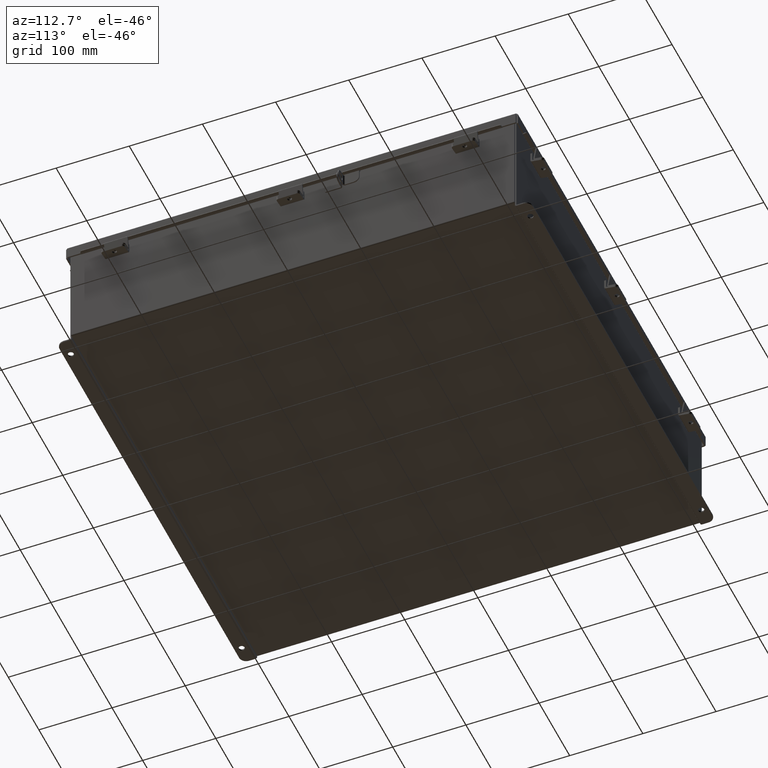
[diagram: clean part render]
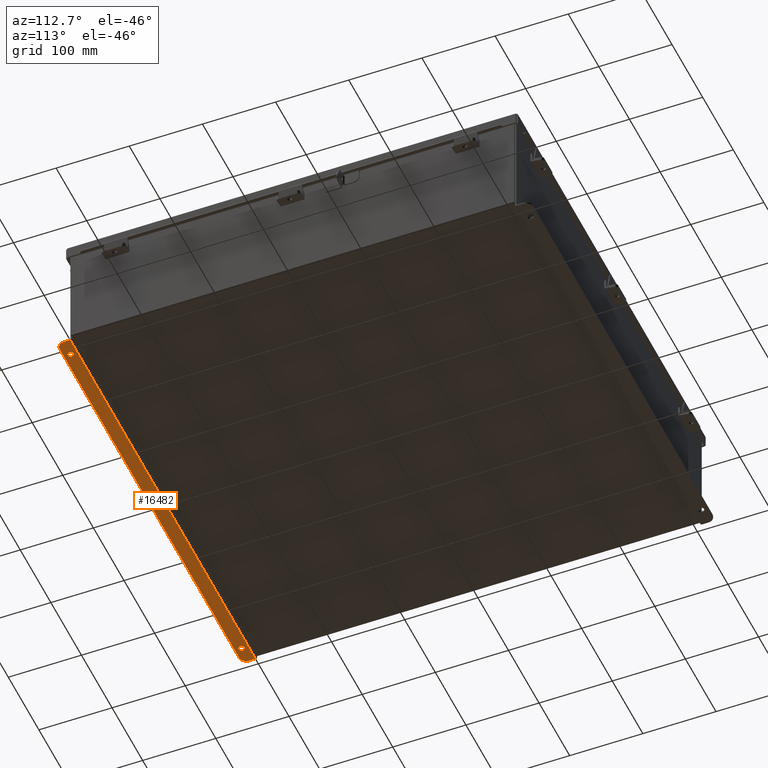
[diagram: same view with one face highlighted and labeled with its STEP entity id]
A machine part, auxiliary view. The second image highlights one B-rep face of the part: STEP entity #16482.
In plain terms, the highlighted planar face has unit normal (0, -0, 1).
Its self-contained STEP definition (entity closure, byte-faithful):
#317 = CARTESIAN_POINT ( 'NONE',  ( -11.55029999999997500, 0.3627999999999964600, -3.186999999999997600 ) ) ;
#361 = FACE_OUTER_BOUND ( 'NONE', #10475, .T. ) ;
#673 = VECTOR ( 'NONE', #6812, 39.37007874015748100 ) ;
#1073 = CARTESIAN_POINT ( 'NONE',  ( 11.92530000000000500, 0.01300000000000229300, -3.187000000000000700 ) ) ;
#1132 = CARTESIAN_POINT ( 'NONE',  ( -11.92529999999998000, 0.3627999999999964600, -3.187000000000001600 ) ) ;
#1298 = LINE ( 'NONE', #2586, #673 ) ;
#1455 = CARTESIAN_POINT ( 'NONE',  ( -10.98779999999997700, 0.5187999999999987100, -3.187000000000002500 ) ) ;
#1707 = CARTESIAN_POINT ( 'NONE',  ( 11.92530000000000500, 0.01300000000000229300, -3.187000000000000700 ) ) ;
#2072 = CARTESIAN_POINT ( 'NONE',  ( 10.98780000000002100, 0.5188000000000009300, -3.186999999999998100 ) ) ;
#2229 = DIRECTION ( 'NONE',  ( 0.0000000000000000000, 3.702694488566362300E-015, 1.000000000000000000 ) ) ;
#2241 = DIRECTION ( 'NONE',  ( 0.0000000000000000000, -1.000000000000000000, 4.370956789862820400E-015 ) ) ;
#2309 = EDGE_CURVE ( 'NONE', #8715, #13537, #1298, .T. ) ;
#2586 = CARTESIAN_POINT ( 'NONE',  ( -11.92529999999999800, -2.841121913410833900E-014, -3.186999999999996300 ) ) ;
#2670 = VECTOR ( 'NONE', #7407, 39.37007874015748100 ) ;
#3170 = DIRECTION ( 'NONE',  ( 0.0000000000000000000, -3.362274453740631800E-015, -1.000000000000000000 ) ) ;
#3218 = VECTOR ( 'NONE', #9178, 39.37007874015748100 ) ;
#3446 = DIRECTION ( 'NONE',  ( 0.0000000000000000000, -3.362274453740631800E-015, -1.000000000000000000 ) ) ;
#3719 = CARTESIAN_POINT ( 'NONE',  ( 11.92530000000002300, 0.3628000000000008400, -3.186999999999997600 ) ) ;
#3985 = CARTESIAN_POINT ( 'NONE',  ( -11.92529999999999500, 0.01299999999998262300, -3.186999999999996300 ) ) ;
#4788 = FACE_BOUND ( 'NONE', #15965, .T. ) ;
#5002 = ORIENTED_EDGE ( 'NONE', *, *, #20943, .F. ) ;
#5937 = CARTESIAN_POINT ( 'NONE',  ( -10.98779999999999300, 0.2067999999999986000, -3.187000000000001200 ) ) ;
#6747 = CARTESIAN_POINT ( 'NONE',  ( -10.98779999999997700, 0.3627999999999986800, -3.187000000000001600 ) ) ;
#6812 = DIRECTION ( 'NONE',  ( 4.919856193148104900E-031, 1.000000000000000000, -3.702694488566362300E-015 ) ) ;
#6863 = VERTEX_POINT ( 'NONE', #22633 ) ;
#7407 = DIRECTION ( 'NONE',  ( 1.000000000000000000, 2.290800226127906500E-017, -0.0000000000000000000 ) ) ;
#7786 = VERTEX_POINT ( 'NONE', #2072 ) ;
#8158 = DIRECTION ( 'NONE',  ( -0.0000000000000000000, -3.702694488566362300E-015, -1.000000000000000000 ) ) ;
#8664 = CARTESIAN_POINT ( 'NONE',  ( -10.98779999999997700, 0.3627999999999986800, -3.187000000000001600 ) ) ;
#8690 = DIRECTION ( 'NONE',  ( 0.0000000000000000000, 1.000000000000000000, -3.502369222646490200E-015 ) ) ;
#8715 = VERTEX_POINT ( 'NONE', #3985 ) ;
#9040 = EDGE_CURVE ( 'NONE', #9145, #12519, #14675, .T. ) ;
#9145 = VERTEX_POINT ( 'NONE', #3719 ) ;
#9178 = DIRECTION ( 'NONE',  ( -4.919856193148104900E-031, -1.000000000000000000, 3.702694488566362300E-015 ) ) ;
#9779 = CIRCLE ( 'NONE', #11857, 0.3750000000000000600 ) ;
#9829 = CARTESIAN_POINT ( 'NONE',  ( 0.0000000000000000000, -1.092739197465705300E-014, -3.187000000000000700 ) ) ;
#10111 = EDGE_CURVE ( 'NONE', #23791, #9145, #9779, .T. ) ;
#10475 = EDGE_LOOP ( 'NONE', ( #13216, #21965, #15513, #20337, #15808, #13962 ) ) ;
#10526 = CIRCLE ( 'NONE', #16227, 0.1560000000000000600 ) ;
#10570 = VECTOR ( 'NONE', #20051, 39.37007874015748100 ) ;
#10604 = DIRECTION ( 'NONE',  ( 0.0000000000000000000, 1.000000000000000000, -3.502369222646490200E-015 ) ) ;
#10654 = AXIS2_PLACEMENT_3D ( 'NONE', #9829, #2229, #15654 ) ;
#11090 = VERTEX_POINT ( 'NONE', #14626 ) ;
#11191 = CIRCLE ( 'NONE', #15649, 0.1560000000000000600 ) ;
#11748 = PLANE ( 'NONE',  #10654 ) ;
#11857 = AXIS2_PLACEMENT_3D ( 'NONE', #19694, #8158, #21678 ) ;
#12375 = ORIENTED_EDGE ( 'NONE', *, *, #14980, .F. ) ;
#12519 = VERTEX_POINT ( 'NONE', #1073 ) ;
#12951 = CARTESIAN_POINT ( 'NONE',  ( 11.92530000000000500, -1.092739197465705300E-014, -3.187000000000000700 ) ) ;
#13216 = ORIENTED_EDGE ( 'NONE', *, *, #2309, .T. ) ;
#13518 = EDGE_CURVE ( 'NONE', #23760, #21733, #21431, .T. ) ;
#13537 = VERTEX_POINT ( 'NONE', #1132 ) ;
#13733 = DIRECTION ( 'NONE',  ( -0.0000000000000000000, -3.702694488566362300E-015, -1.000000000000000000 ) ) ;
#13962 = ORIENTED_EDGE ( 'NONE', *, *, #22837, .F. ) ;
#14218 = CIRCLE ( 'NONE', #24371, 0.3750000000000000600 ) ;
#14469 = FACE_BOUND ( 'NONE', #19398, .T. ) ;
#14606 = EDGE_CURVE ( 'NONE', #13537, #6863, #14218, .T. ) ;
#14626 = CARTESIAN_POINT ( 'NONE',  ( 10.98780000000000500, 0.2068000000000007900, -3.186999999999996700 ) ) ;
#14675 = LINE ( 'NONE', #12951, #3218 ) ;
#14706 = CARTESIAN_POINT ( 'NONE',  ( 10.98780000000002100, 0.3628000000000008400, -3.186999999999997600 ) ) ;
#14980 = EDGE_CURVE ( 'NONE', #7786, #11090, #11191, .T. ) ;
#14984 = CARTESIAN_POINT ( 'NONE',  ( 10.98780000000002100, 0.3628000000000008400, -3.186999999999997600 ) ) ;
#15446 = EDGE_CURVE ( 'NONE', #6863, #23791, #20851, .T. ) ;
#15513 = ORIENTED_EDGE ( 'NONE', *, *, #15446, .T. ) ;
#15649 = AXIS2_PLACEMENT_3D ( 'NONE', #14984, #3446, #16902 ) ;
#15654 = DIRECTION ( 'NONE',  ( -4.919856193148104900E-031, -1.000000000000000000, 3.702694488566362300E-015 ) ) ;
#15808 = ORIENTED_EDGE ( 'NONE', *, *, #9040, .T. ) ;
#15965 = EDGE_LOOP ( 'NONE', ( #12375, #5002 ) ) ;
#16227 = AXIS2_PLACEMENT_3D ( 'NONE', #8664, #22198, #10604 ) ;
#16482 = ADVANCED_FACE ( 'NONE', ( #14469, #4788, #361 ), #11748, .F. ) ;
#16636 = DIRECTION ( 'NONE',  ( 0.0000000000000000000, 1.000000000000000000, -3.502369222646490200E-015 ) ) ;
#16902 = DIRECTION ( 'NONE',  ( 0.0000000000000000000, 1.000000000000000000, -3.502369222646490200E-015 ) ) ;
#16959 = CARTESIAN_POINT ( 'NONE',  ( 11.55030000000002300, 0.7378000000000011200, -3.186999999999998900 ) ) ;
#17190 = AXIS2_PLACEMENT_3D ( 'NONE', #14706, #3170, #16636 ) ;
#17596 = AXIS2_PLACEMENT_3D ( 'NONE', #6747, #20238, #8690 ) ;
#19398 = EDGE_LOOP ( 'NONE', ( #23638, #20583 ) ) ;
#19694 = CARTESIAN_POINT ( 'NONE',  ( 11.55030000000002300, 0.3628000000000008400, -3.187000000000001600 ) ) ;
#20051 = DIRECTION ( 'NONE',  ( 1.000000000000000000, 4.910036603141682400E-031, 0.0000000000000000000 ) ) ;
#20238 = DIRECTION ( 'NONE',  ( 0.0000000000000000000, -3.362274453740631800E-015, -1.000000000000000000 ) ) ;
#20337 = ORIENTED_EDGE ( 'NONE', *, *, #10111, .T. ) ;
#20583 = ORIENTED_EDGE ( 'NONE', *, *, #21443, .F. ) ;
#20825 = CIRCLE ( 'NONE', #17190, 0.1560000000000000600 ) ;
#20851 = LINE ( 'NONE', #22035, #10570 ) ;
#20943 = EDGE_CURVE ( 'NONE', #11090, #7786, #20825, .T. ) ;
#21431 = CIRCLE ( 'NONE', #17596, 0.1560000000000000600 ) ;
#21443 = EDGE_CURVE ( 'NONE', #21733, #23760, #10526, .T. ) ;
#21678 = DIRECTION ( 'NONE',  ( 0.0000000000000000000, -1.000000000000000000, 4.370956789862820400E-015 ) ) ;
#21733 = VERTEX_POINT ( 'NONE', #5937 ) ;
#21965 = ORIENTED_EDGE ( 'NONE', *, *, #14606, .T. ) ;
#22035 = CARTESIAN_POINT ( 'NONE',  ( -2.035385365534024800E-024, 0.7377999999999989000, -3.186999999999998900 ) ) ;
#22198 = DIRECTION ( 'NONE',  ( 0.0000000000000000000, -3.362274453740631800E-015, -1.000000000000000000 ) ) ;
#22633 = CARTESIAN_POINT ( 'NONE',  ( -11.55029999999997500, 0.7377999999999835800, -3.187000000000003400 ) ) ;
#22837 = EDGE_CURVE ( 'NONE', #8715, #12519, #23173, .T. ) ;
#23173 = LINE ( 'NONE', #1707, #2670 ) ;
#23638 = ORIENTED_EDGE ( 'NONE', *, *, #13518, .F. ) ;
#23760 = VERTEX_POINT ( 'NONE', #1455 ) ;
#23791 = VERTEX_POINT ( 'NONE', #16959 ) ;
#24371 = AXIS2_PLACEMENT_3D ( 'NONE', #317, #13733, #2241 ) ;